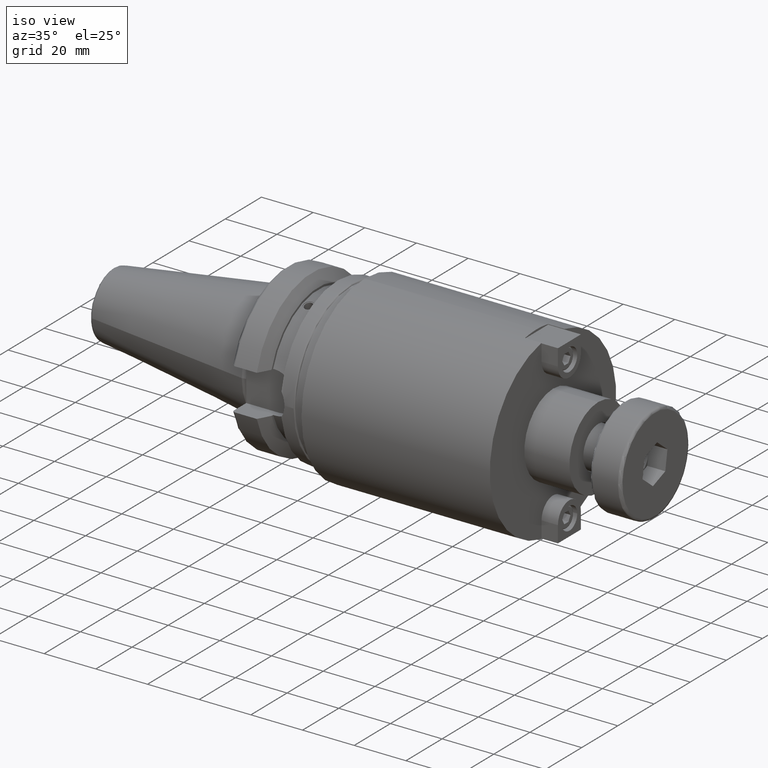
[diagram: clean part render]
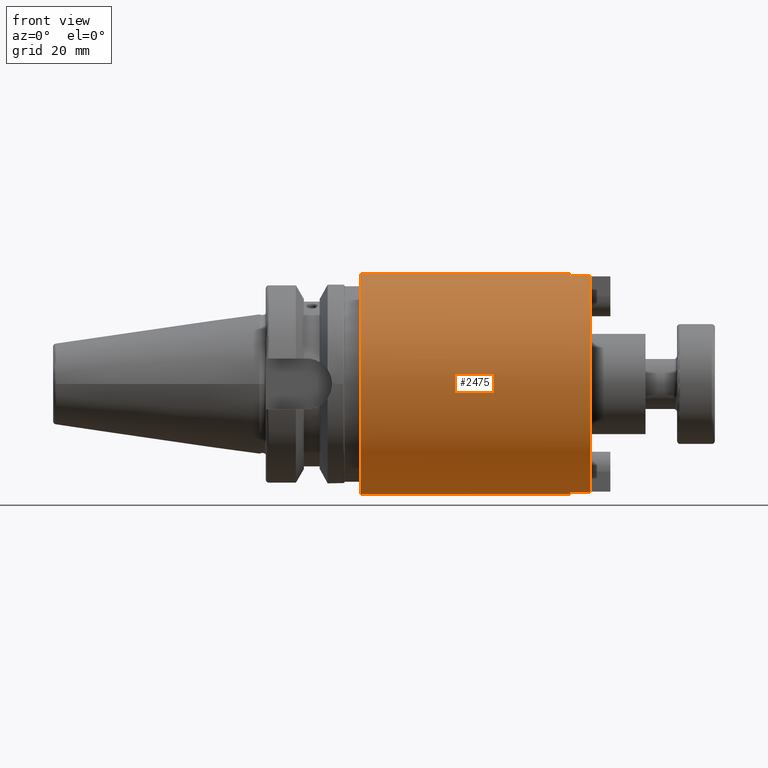
[diagram: tour spotlight — one face highlighted and labeled with its STEP entity id]
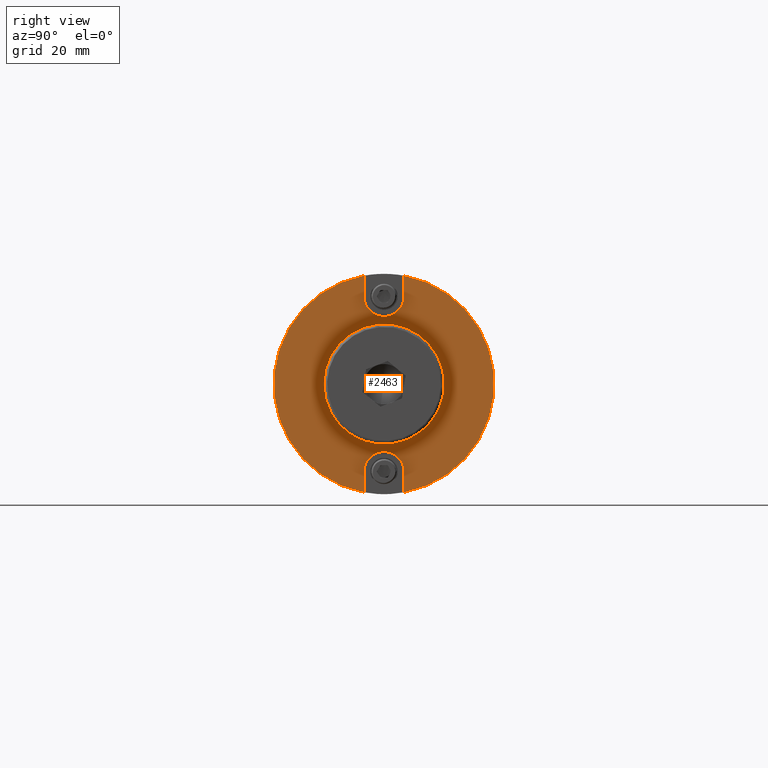
[diagram: tour spotlight — one face highlighted and labeled with its STEP entity id]
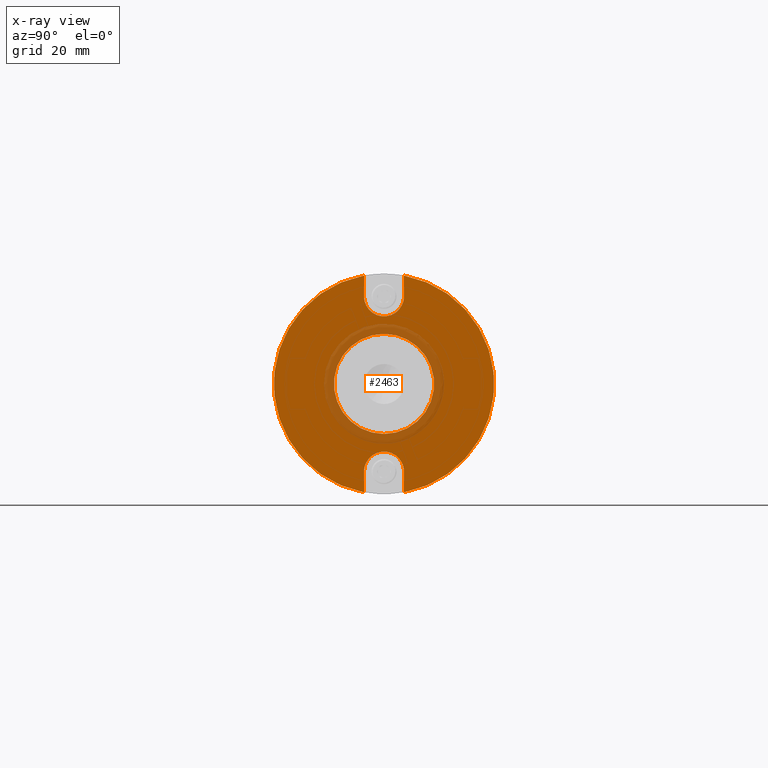
[diagram: x-ray of the same camera — body ghosted, this tour face saturated]
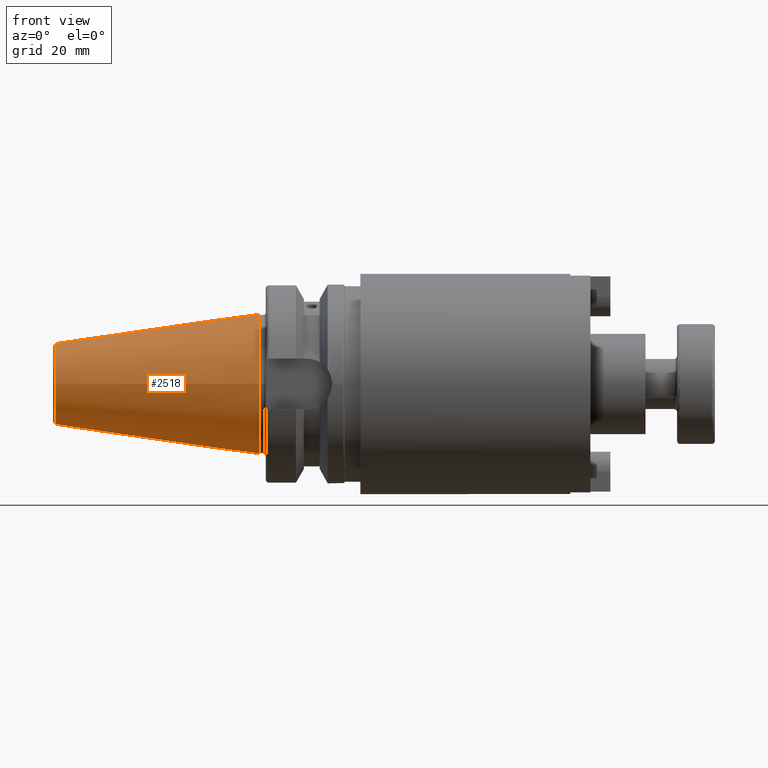
[diagram: tour spotlight — one face highlighted and labeled with its STEP entity id]
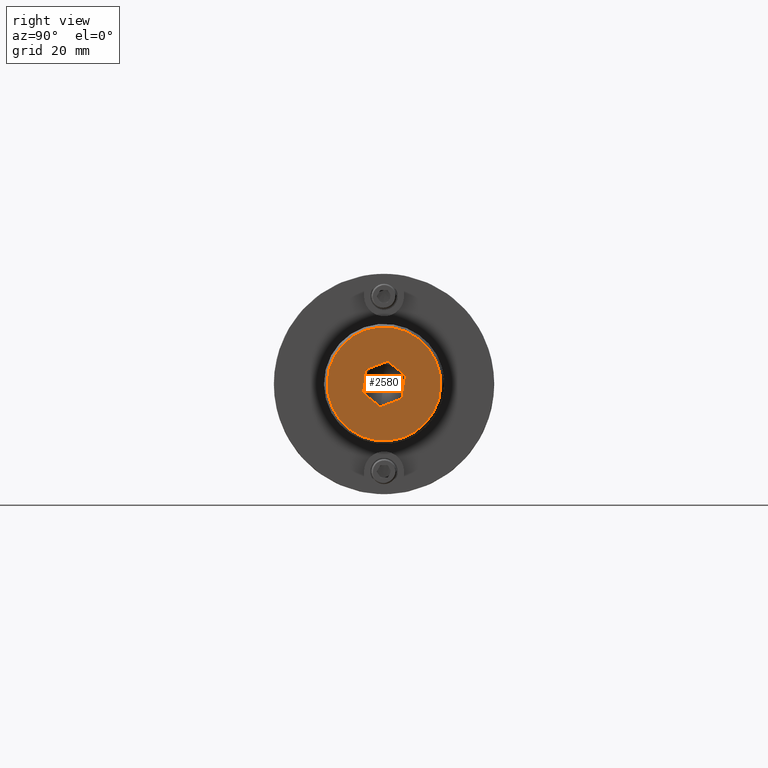
[diagram: tour spotlight — one face highlighted and labeled with its STEP entity id]
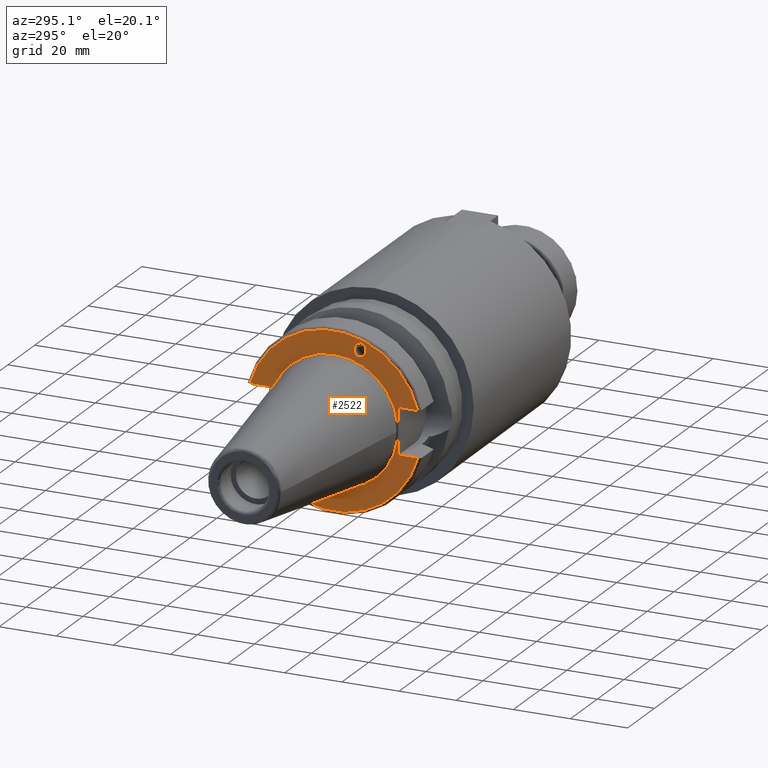
[diagram: tour spotlight — one face highlighted and labeled with its STEP entity id]
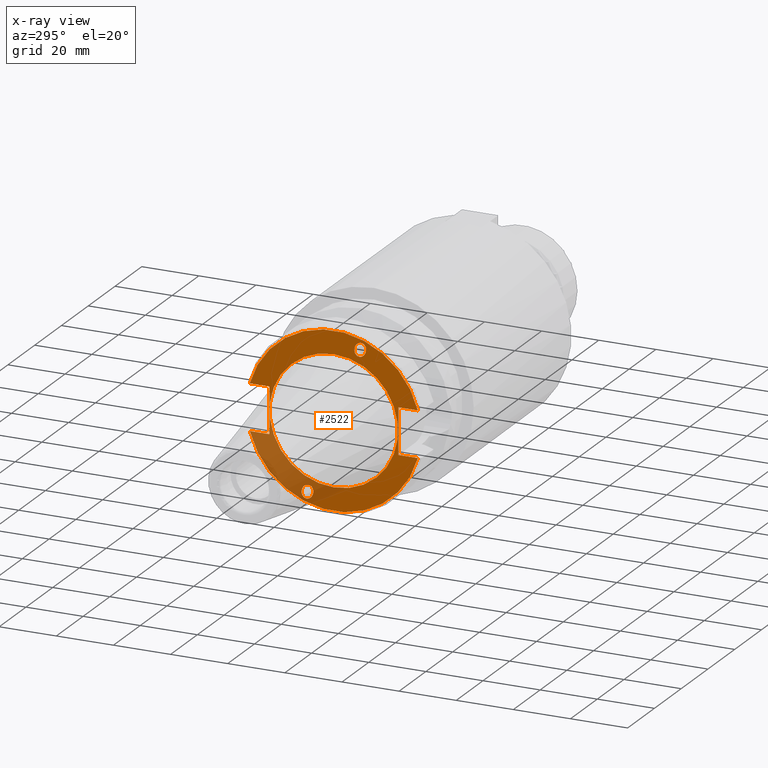
[diagram: x-ray of the same camera — body ghosted, this tour face saturated]
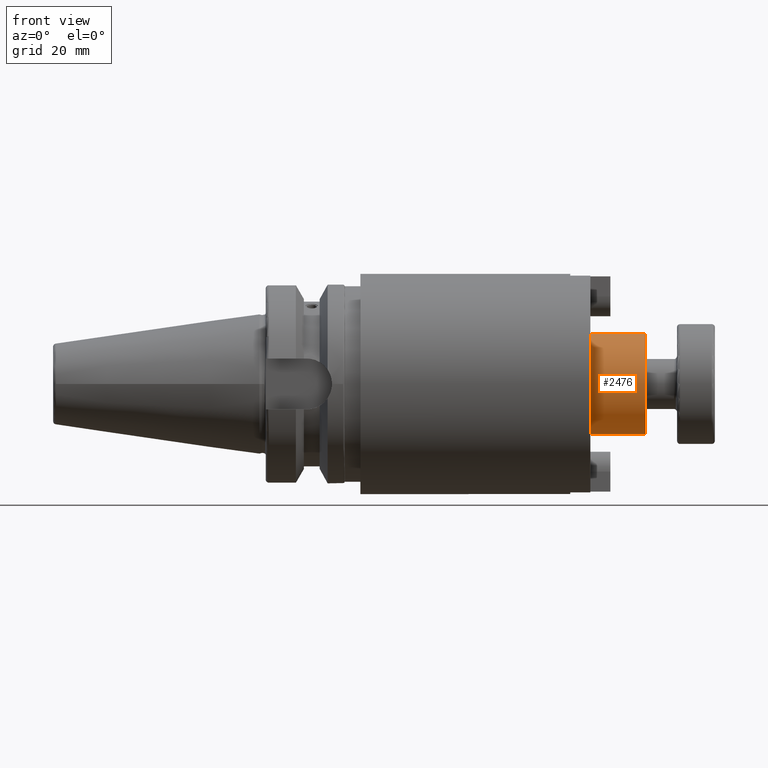
[diagram: tour spotlight — one face highlighted and labeled with its STEP entity id]
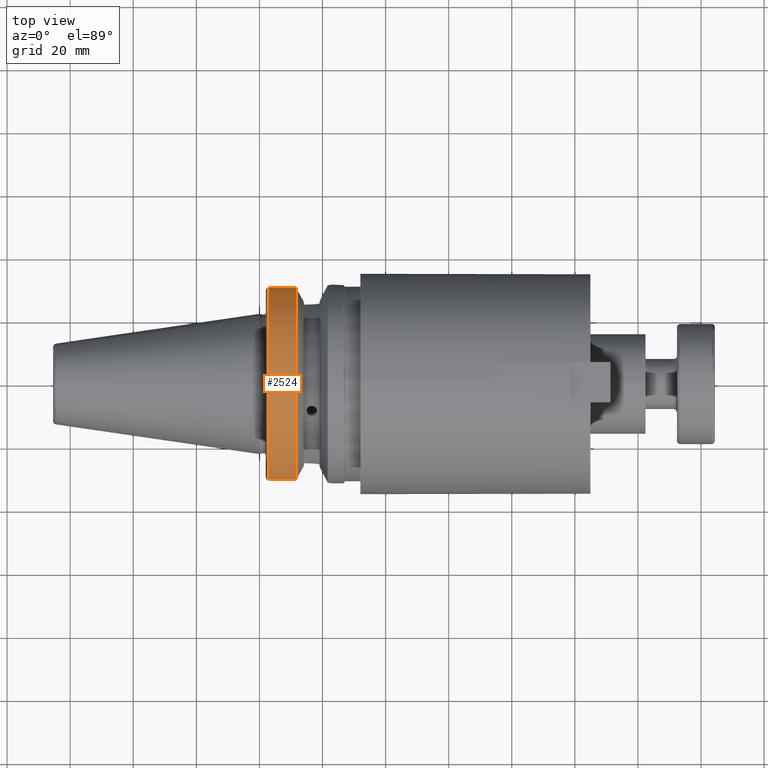
[diagram: tour spotlight — one face highlighted and labeled with its STEP entity id]
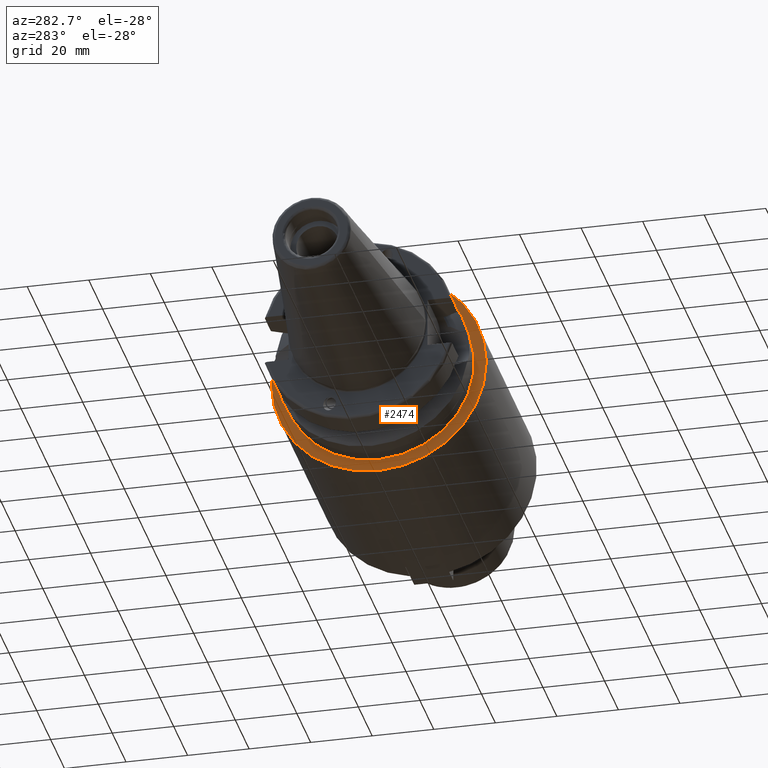
[diagram: tour spotlight — one face highlighted and labeled with its STEP entity id]
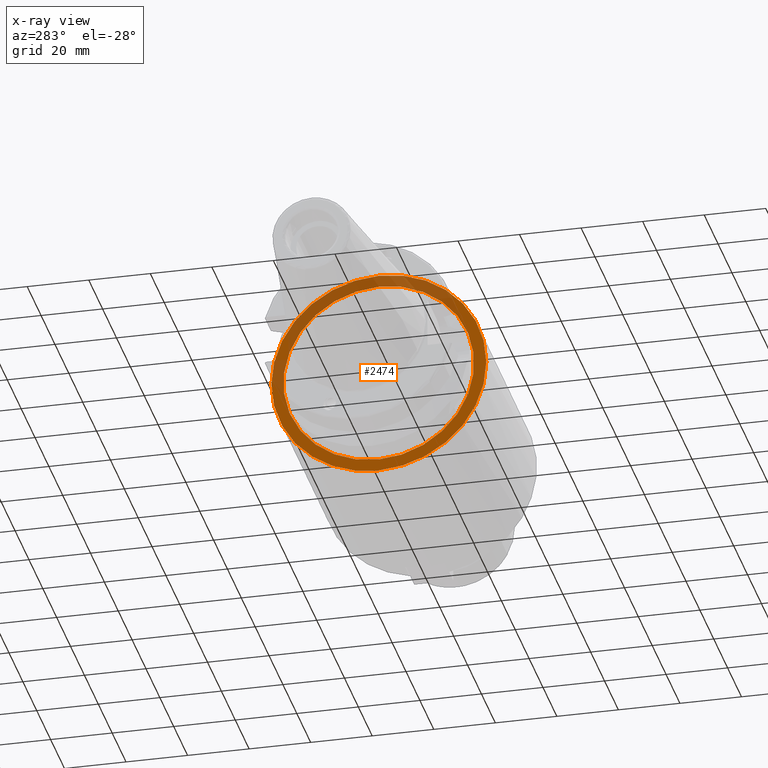
[diagram: x-ray of the same camera — body ghosted, this tour face saturated]
A machine part: a face-by-face anatomy tour. The part has 148 B-rep faces; the first image is the clean iso view, then the 8 largest visible faces are spotlighted one at a time (largest first), each with its STEP entity span.

Face 1 — front view, entity #2475. In plain terms, the highlighted cylindrical surface (bore or boss wall) has radius 34.925 mm, axis along (1, 0, 0).
Definition (entity closure, byte-faithful):
#574=CYLINDRICAL_SURFACE('',#2775,34.925);
#611=CIRCLE('',#2745,34.925);
#612=CIRCLE('',#2746,34.925);
#613=CIRCLE('',#2748,34.925);
#615=CIRCLE('',#2750,34.925);
#620=CIRCLE('',#2761,34.925);
#628=CIRCLE('',#2774,34.925);
#772=FACE_OUTER_BOUND('',#902,.T.);
#902=EDGE_LOOP('',(#1880,#1881,#1882,#1883,#1884,#1885,#1886,#1887,#1888,
#1889,#1890,#1891));
#1028=LINE('',#3854,#1163);
#1034=LINE('',#3872,#1169);
#1042=LINE('',#3908,#1177);
#1045=LINE('',#3914,#1180);
#1052=LINE('',#4024,#1187);
#1163=VECTOR('',#3066,10.);
#1169=VECTOR('',#3082,10.);
#1177=VECTOR('',#3122,10.);
#1180=VECTOR('',#3127,10.);
#1187=VECTOR('',#3170,34.925);
#1298=VERTEX_POINT('',#3852);
#1299=VERTEX_POINT('',#3853);
#1305=VERTEX_POINT('',#3870);
#1306=VERTEX_POINT('',#3871);
#1309=VERTEX_POINT('',#3882);
#1310=VERTEX_POINT('',#3886);
#1313=VERTEX_POINT('',#3892);
#1318=VERTEX_POINT('',#3907);
#1320=VERTEX_POINT('',#3913);
#1333=VERTEX_POINT('',#4021);
#1497=EDGE_CURVE('',#1298,#1299,#1028,.T.);
#1505=EDGE_CURVE('',#1305,#1306,#1034,.T.);
#1511=EDGE_CURVE('',#1306,#1309,#611,.T.);
#1512=EDGE_CURVE('',#1309,#1298,#612,.T.);
#1513=EDGE_CURVE('',#1305,#1310,#613,.T.);
#1517=EDGE_CURVE('',#1313,#1299,#615,.T.);
#1523=EDGE_CURVE('',#1318,#1310,#1042,.T.);
#1526=EDGE_CURVE('',#1313,#1320,#1045,.T.);
#1530=EDGE_CURVE('',#1320,#1318,#620,.T.);
#1546=EDGE_CURVE('',#1333,#1333,#628,.T.);
#1547=EDGE_CURVE('',#1309,#1333,#1052,.T.);
#1880=ORIENTED_EDGE('',*,*,#1497,.T.);
#1881=ORIENTED_EDGE('',*,*,#1517,.F.);
#1882=ORIENTED_EDGE('',*,*,#1526,.T.);
#1883=ORIENTED_EDGE('',*,*,#1530,.T.);
#1884=ORIENTED_EDGE('',*,*,#1523,.T.);
#1885=ORIENTED_EDGE('',*,*,#1513,.F.);
#1886=ORIENTED_EDGE('',*,*,#1505,.T.);
#1887=ORIENTED_EDGE('',*,*,#1511,.T.);
#1888=ORIENTED_EDGE('',*,*,#1547,.T.);
#1889=ORIENTED_EDGE('',*,*,#1546,.T.);
#1890=ORIENTED_EDGE('',*,*,#1547,.F.);
#1891=ORIENTED_EDGE('',*,*,#1512,.T.);
#2475=ADVANCED_FACE('',(#772),#574,.T.);
#2745=AXIS2_PLACEMENT_3D('',#3883,#3094,#3095);
#2746=AXIS2_PLACEMENT_3D('',#3884,#3096,#3097);
#2748=AXIS2_PLACEMENT_3D('',#3887,#3100,#3101);
#2750=AXIS2_PLACEMENT_3D('',#3894,#3106,#3107);
#2761=AXIS2_PLACEMENT_3D('',#3921,#3136,#3137);
#2774=AXIS2_PLACEMENT_3D('',#4022,#3166,#3167);
#2775=AXIS2_PLACEMENT_3D('',#4023,#3168,#3169);
#3066=DIRECTION('',(1.,0.,0.));
#3082=DIRECTION('',(-1.,0.,0.));
#3094=DIRECTION('center_axis',(-1.,0.,0.));
#3095=DIRECTION('ref_axis',(0.,0.,-1.));
#3096=DIRECTION('center_axis',(-1.,0.,0.));
#3097=DIRECTION('ref_axis',(0.,0.,-1.));
#3100=DIRECTION('center_axis',(1.,0.,0.));
#3101=DIRECTION('ref_axis',(0.,0.,-1.));
#3106=DIRECTION('center_axis',(1.,0.,0.));
#3107=DIRECTION('ref_axis',(0.,0.,-1.));
#3122=DIRECTION('',(1.,0.,0.));
#3127=DIRECTION('',(-1.,0.,0.));
#3136=DIRECTION('center_axis',(-1.,0.,0.));
#3137=DIRECTION('ref_axis',(0.,0.,-1.));
#3166=DIRECTION('center_axis',(1.,0.,0.));
#3167=DIRECTION('ref_axis',(0.,0.,-1.));
#3168=DIRECTION('center_axis',(1.,0.,0.));
#3169=DIRECTION('ref_axis',(0.,0.,-1.));
#3170=DIRECTION('',(-1.,0.,0.));
#3852=CARTESIAN_POINT('',(98.55,6.35,34.3428758987945));
#3853=CARTESIAN_POINT('',(104.9,6.35,34.3428758987945));
#3854=CARTESIAN_POINT('',(68.45,6.35,34.3428758987945));
#3870=CARTESIAN_POINT('',(104.9,-6.34999999999999,34.3428758987945));
#3871=CARTESIAN_POINT('',(98.55,-6.34999999999999,34.3428758987945));
#3872=CARTESIAN_POINT('',(68.45,-6.34999999999999,34.3428758987945));
#3882=CARTESIAN_POINT('',(98.55,-4.27707894602213E-15,34.925));
#3883=CARTESIAN_POINT('Origin',(98.55,0.,0.));
#3884=CARTESIAN_POINT('Origin',(98.55,0.,0.));
#3886=CARTESIAN_POINT('',(104.9,-6.35,-34.3428758987945));
#3887=CARTESIAN_POINT('Origin',(104.9,0.,0.));
#3892=CARTESIAN_POINT('',(104.9,6.35,-34.3428758987945));
#3894=CARTESIAN_POINT('Origin',(104.9,0.,0.));
#3907=CARTESIAN_POINT('',(98.55,-6.35,-34.3428758987945));
#3908=CARTESIAN_POINT('',(68.45,-6.35,-34.3428758987945));
#3913=CARTESIAN_POINT('',(98.55,6.35,-34.3428758987945));
#3914=CARTESIAN_POINT('',(68.45,6.35,-34.3428758987945));
#3921=CARTESIAN_POINT('Origin',(98.55,0.,0.));
#4021=CARTESIAN_POINT('',(32.,-4.27707894602213E-15,34.925));
#4022=CARTESIAN_POINT('Origin',(32.,0.,0.));
#4023=CARTESIAN_POINT('Origin',(68.45,0.,0.));
#4024=CARTESIAN_POINT('',(68.45,-4.27707894602213E-15,34.925));

Face 2 — right view, entity #2463. An x-ray twin of the same camera follows (body ghosted, this face saturated) — the face is partly hidden behind the body. In plain terms, the highlighted planar face has unit normal (1, 0, 0).
Definition (entity closure, byte-faithful):
#542=FACE_BOUND('',#886,.T.);
#609=CIRCLE('',#2742,6.35);
#613=CIRCLE('',#2748,34.925);
#614=CIRCLE('',#2749,6.35);
#615=CIRCLE('',#2750,34.925);
#616=CIRCLE('',#2751,15.875);
#760=FACE_OUTER_BOUND('',#885,.T.);
#885=EDGE_LOOP('',(#1823,#1824,#1825,#1826,#1827,#1828,#1829,#1830));
#886=EDGE_LOOP('',(#1831));
#1031=LINE('',#3859,#1166);
#1035=LINE('',#3874,#1170);
#1038=LINE('',#3889,#1173);
#1039=LINE('',#3893,#1174);
#1166=VECTOR('',#3069,10.);
#1170=VECTOR('',#3083,10.);
#1173=VECTOR('',#3102,10.);
#1174=VECTOR('',#3105,10.);
#1299=VERTEX_POINT('',#3853);
#1301=VERTEX_POINT('',#3857);
#1305=VERTEX_POINT('',#3870);
#1307=VERTEX_POINT('',#3873);
#1310=VERTEX_POINT('',#3886);
#1311=VERTEX_POINT('',#3888);
#1312=VERTEX_POINT('',#3890);
#1313=VERTEX_POINT('',#3892);
#1314=VERTEX_POINT('',#3895);
#1500=EDGE_CURVE('',#1299,#1301,#1031,.T.);
#1506=EDGE_CURVE('',#1307,#1305,#1035,.T.);
#1509=EDGE_CURVE('',#1301,#1307,#609,.T.);
#1513=EDGE_CURVE('',#1305,#1310,#613,.T.);
#1514=EDGE_CURVE('',#1310,#1311,#1038,.T.);
#1515=EDGE_CURVE('',#1311,#1312,#614,.T.);
#1516=EDGE_CURVE('',#1312,#1313,#1039,.T.);
#1517=EDGE_CURVE('',#1313,#1299,#615,.T.);
#1518=EDGE_CURVE('',#1314,#1314,#616,.T.);
#1823=ORIENTED_EDGE('',*,*,#1500,.T.);
#1824=ORIENTED_EDGE('',*,*,#1509,.T.);
#1825=ORIENTED_EDGE('',*,*,#1506,.T.);
#1826=ORIENTED_EDGE('',*,*,#1513,.T.);
#1827=ORIENTED_EDGE('',*,*,#1514,.T.);
#1828=ORIENTED_EDGE('',*,*,#1515,.T.);
#1829=ORIENTED_EDGE('',*,*,#1516,.T.);
#1830=ORIENTED_EDGE('',*,*,#1517,.T.);
#1831=ORIENTED_EDGE('',*,*,#1518,.F.);
#2403=PLANE('',#2747);
#2463=ADVANCED_FACE('',(#760,#542),#2403,.T.);
#2742=AXIS2_PLACEMENT_3D('',#3879,#3088,#3089);
#2747=AXIS2_PLACEMENT_3D('',#3885,#3098,#3099);
#2748=AXIS2_PLACEMENT_3D('',#3887,#3100,#3101);
#2749=AXIS2_PLACEMENT_3D('',#3891,#3103,#3104);
#2750=AXIS2_PLACEMENT_3D('',#3894,#3106,#3107);
#2751=AXIS2_PLACEMENT_3D('',#3896,#3108,#3109);
#3069=DIRECTION('',(0.,3.34417223223189E-16,-1.));
#3083=DIRECTION('',(0.,5.7934658305266E-16,1.));
#3088=DIRECTION('center_axis',(-1.,0.,0.));
#3089=DIRECTION('ref_axis',(0.,-1.,1.22464679914735E-16));
#3098=DIRECTION('center_axis',(1.,0.,0.));
#3099=DIRECTION('ref_axis',(0.,0.,-1.));
#3100=DIRECTION('center_axis',(1.,0.,0.));
#3101=DIRECTION('ref_axis',(0.,0.,-1.));
#3102=DIRECTION('',(0.,-4.56881903137925E-16,1.));
#3103=DIRECTION('center_axis',(-1.,0.,0.));
#3104=DIRECTION('ref_axis',(0.,1.,0.));
#3105=DIRECTION('',(0.,-4.56881903137925E-16,-1.));
#3106=DIRECTION('center_axis',(1.,0.,0.));
#3107=DIRECTION('ref_axis',(0.,0.,-1.));
#3108=DIRECTION('center_axis',(1.,0.,0.));
#3109=DIRECTION('ref_axis',(0.,0.,-1.));
#3853=CARTESIAN_POINT('',(104.9,6.35,34.3428758987945));
#3857=CARTESIAN_POINT('',(104.9,6.35,27.775));
#3859=CARTESIAN_POINT('',(104.9,6.35000000000001,12.025));
#3870=CARTESIAN_POINT('',(104.9,-6.34999999999999,34.3428758987945));
#3873=CARTESIAN_POINT('',(104.9,-6.35,27.775));
#3874=CARTESIAN_POINT('',(104.9,-6.35000000000001,5.95));
#3879=CARTESIAN_POINT('Origin',(104.9,3.40145648463177E-15,27.775));
#3885=CARTESIAN_POINT('Origin',(104.9,0.,-15.875));
#3886=CARTESIAN_POINT('',(104.9,-6.35,-34.3428758987945));
#3887=CARTESIAN_POINT('Origin',(104.9,0.,0.));
#3888=CARTESIAN_POINT('',(104.9,-6.35,-27.775));
#3889=CARTESIAN_POINT('',(104.9,-6.35,-27.9));
#3890=CARTESIAN_POINT('',(104.9,6.35,-27.775));
#3891=CARTESIAN_POINT('Origin',(104.9,0.,-27.775));
#3892=CARTESIAN_POINT('',(104.9,6.35,-34.3428758987945));
#3893=CARTESIAN_POINT('',(104.9,6.35,-21.825));
#3894=CARTESIAN_POINT('Origin',(104.9,0.,0.));
#3895=CARTESIAN_POINT('',(104.9,-1.94412679364642E-15,15.875));
#3896=CARTESIAN_POINT('Origin',(104.9,0.,0.));

Face 3 — front view, entity #2518. In plain terms, the highlighted conical surface has half-angle 8.297 deg.
Definition (entity closure, byte-faithful):
#661=CIRCLE('',#2868,12.8122885780937);
#662=CIRCLE('',#2869,12.8122885780937);
#664=CIRCLE('',#2872,22.225);
#746=CONICAL_SURFACE('',#2871,17.5186442890469,0.144812498238939);
#815=FACE_OUTER_BOUND('',#953,.T.);
#953=EDGE_LOOP('',(#2112,#2113,#2114,#2115,#2116));
#1100=LINE('',#4450,#1235);
#1235=VECTOR('',#3412,17.5186442890469);
#1418=VERTEX_POINT('',#4442);
#1419=VERTEX_POINT('',#4443);
#1420=VERTEX_POINT('',#4448);
#1668=EDGE_CURVE('',#1418,#1419,#661,.T.);
#1669=EDGE_CURVE('',#1419,#1418,#662,.T.);
#1671=EDGE_CURVE('',#1420,#1420,#664,.T.);
#1672=EDGE_CURVE('',#1420,#1418,#1100,.T.);
#2112=ORIENTED_EDGE('',*,*,#1671,.F.);
#2113=ORIENTED_EDGE('',*,*,#1672,.T.);
#2114=ORIENTED_EDGE('',*,*,#1668,.T.);
#2115=ORIENTED_EDGE('',*,*,#1669,.T.);
#2116=ORIENTED_EDGE('',*,*,#1672,.F.);
#2518=ADVANCED_FACE('',(#815),#746,.T.);
#2868=AXIS2_PLACEMENT_3D('',#4444,#3402,#3403);
#2869=AXIS2_PLACEMENT_3D('',#4445,#3404,#3405);
#2871=AXIS2_PLACEMENT_3D('',#4447,#3408,#3409);
#2872=AXIS2_PLACEMENT_3D('',#4449,#3410,#3411);
#3402=DIRECTION('center_axis',(1.,0.,0.));
#3403=DIRECTION('ref_axis',(0.,0.,-1.));
#3404=DIRECTION('center_axis',(1.,0.,0.));
#3405=DIRECTION('ref_axis',(0.,0.,-1.));
#3408=DIRECTION('center_axis',(1.,0.,0.));
#3409=DIRECTION('ref_axis',(0.,1.,0.));
#3410=DIRECTION('center_axis',(1.,0.,0.));
#3411=DIRECTION('ref_axis',(0.,0.,-1.));
#3412=DIRECTION('',(-0.989532981063282,0.144306893071729,1.76724974695192E-17));
#4442=CARTESIAN_POINT('',(-64.5443068930717,-12.8122885780937,-1.56905281969147E-15));
#4443=CARTESIAN_POINT('',(-64.5443068930717,-1.56905281969147E-15,12.8122885780937));
#4444=CARTESIAN_POINT('Origin',(-64.5443068930717,0.,0.));
#4445=CARTESIAN_POINT('Origin',(-64.5443068930717,0.,0.));
#4447=CARTESIAN_POINT('Origin',(-32.2721534465359,0.,0.));
#4448=CARTESIAN_POINT('',(4.44089209850063E-15,-22.225,-2.72177751110499E-15));
#4449=CARTESIAN_POINT('Origin',(0.,0.,0.));
#4450=CARTESIAN_POINT('',(-32.2721534465359,-17.5186442890469,-2.14541516539823E-15));

Face 4 — right view, entity #2580. In plain terms, the highlighted planar face has unit normal (1, -0, -0).
Definition (entity closure, byte-faithful):
#566=FACE_BOUND('',#1027,.T.);
#736=CIRCLE('',#3026,18.05);
#877=FACE_OUTER_BOUND('',#1026,.T.);
#1026=EDGE_LOOP('',(#2393));
#1027=EDGE_LOOP('',(#2394,#2395,#2396,#2397,#2398,#2399));
#1150=LINE('',#5012,#1285);
#1153=LINE('',#5017,#1288);
#1155=LINE('',#5021,#1290);
#1157=LINE('',#5025,#1292);
#1159=LINE('',#5029,#1294);
#1161=LINE('',#5032,#1296);
#1285=VECTOR('',#3730,10.);
#1288=VECTOR('',#3735,10.);
#1290=VECTOR('',#3739,10.);
#1292=VECTOR('',#3743,10.);
#1294=VECTOR('',#3747,10.);
#1296=VECTOR('',#3751,10.);
#1484=VERTEX_POINT('',#5010);
#1485=VERTEX_POINT('',#5011);
#1486=VERTEX_POINT('',#5016);
#1487=VERTEX_POINT('',#5020);
#1488=VERTEX_POINT('',#5024);
#1489=VERTEX_POINT('',#5028);
#1496=VERTEX_POINT('',#5053);
#1775=EDGE_CURVE('',#1484,#1485,#1150,.T.);
#1778=EDGE_CURVE('',#1486,#1484,#1153,.T.);
#1780=EDGE_CURVE('',#1487,#1486,#1155,.T.);
#1782=EDGE_CURVE('',#1488,#1487,#1157,.T.);
#1784=EDGE_CURVE('',#1489,#1488,#1159,.T.);
#1786=EDGE_CURVE('',#1485,#1489,#1161,.T.);
#1797=EDGE_CURVE('',#1496,#1496,#736,.T.);
#2393=ORIENTED_EDGE('',*,*,#1797,.F.);
#2394=ORIENTED_EDGE('',*,*,#1775,.T.);
#2395=ORIENTED_EDGE('',*,*,#1786,.T.);
#2396=ORIENTED_EDGE('',*,*,#1784,.T.);
#2397=ORIENTED_EDGE('',*,*,#1782,.T.);
#2398=ORIENTED_EDGE('',*,*,#1780,.T.);
#2399=ORIENTED_EDGE('',*,*,#1778,.T.);
#2456=PLANE('',#3027);
#2580=ADVANCED_FACE('',(#877,#566),#2456,.T.);
#3026=AXIS2_PLACEMENT_3D('',#5055,#3781,#3782);
#3027=AXIS2_PLACEMENT_3D('',#5056,#3783,#3784);
#3730=DIRECTION('',(0.,-0.866025403784439,-0.5));
#3735=DIRECTION('',(0.,-0.866025403784439,0.5));
#3739=DIRECTION('',(0.,-1.51414384754611E-16,1.));
#3743=DIRECTION('',(0.,0.866025403784439,0.5));
#3747=DIRECTION('',(0.,0.866025403784438,-0.5));
#3751=DIRECTION('',(0.,-6.05657539018446E-16,-1.));
#3781=DIRECTION('center_axis',(1.,0.,0.));
#3782=DIRECTION('ref_axis',(0.,-1.,1.83697019872103E-16));
#3783=DIRECTION('center_axis',(-1.,0.,0.));
#3784=DIRECTION('ref_axis',(0.,0.,1.));
#5010=CARTESIAN_POINT('',(0.,-1.23259516440783E-31,7.33234841870824));
#5011=CARTESIAN_POINT('',(0.,-6.34999999999999,3.66617420935412));
#5012=CARTESIAN_POINT('',(0.,5.55625,10.5402508518931));
#5016=CARTESIAN_POINT('',(0.,6.34999999999999,3.66617420935412));
#5017=CARTESIAN_POINT('',(0.,11.90625,0.45827177616926));
#5020=CARTESIAN_POINT('',(0.,6.34999999999999,-3.66617420935412));
#5021=CARTESIAN_POINT('',(0.,6.34999999999999,-1.83308710467706));
#5024=CARTESIAN_POINT('',(0.,-3.33066907387547E-15,-7.33234841870824));
#5025=CARTESIAN_POINT('',(0.,8.73125,-2.29135888084633));
#5028=CARTESIAN_POINT('',(0.,-6.35,-3.66617420935412));
#5029=CARTESIAN_POINT('',(0.,2.38125,-8.70716374721604));
#5032=CARTESIAN_POINT('',(0.,-6.35,1.83308710467707));
#5053=CARTESIAN_POINT('',(0.,-2.21048747246097E-15,18.05));
#5055=CARTESIAN_POINT('Origin',(0.,0.,0.));
#5056=CARTESIAN_POINT('Origin',(0.,19.05,0.));

Face 5 — auxiliary view, entity #2522. An x-ray twin of the same camera follows (body ghosted, this face saturated) — the face is partly hidden behind the body. In plain terms, the highlighted planar face has unit normal (-1, 0, 0).
Definition (entity closure, byte-faithful):
#504=ELLIPSE('',#2805,2.44154917752291,2.);
#513=ELLIPSE('',#2828,2.44154917752291,2.);
#555=FACE_BOUND('',#958,.T.);
#556=FACE_BOUND('',#959,.T.);
#557=FACE_BOUND('',#960,.T.);
#653=CIRCLE('',#2852,30.5);
#669=CIRCLE('',#2880,22.5);
#670=CIRCLE('',#2882,30.5);
#819=FACE_OUTER_BOUND('',#957,.T.);
#957=EDGE_LOOP('',(#2131,#2132,#2133,#2134,#2135,#2136,#2137,#2138));
#958=EDGE_LOOP('',(#2139));
#959=EDGE_LOOP('',(#2140));
#960=EDGE_LOOP('',(#2141));
#1076=LINE('',#4275,#1211);
#1080=LINE('',#4283,#1215);
#1083=LINE('',#4303,#1218);
#1094=LINE('',#4403,#1229);
#1097=LINE('',#4424,#1232);
#1099=LINE('',#4427,#1234);
#1211=VECTOR('',#3306,10.);
#1215=VECTOR('',#3312,10.);
#1218=VECTOR('',#3317,10.);
#1229=VECTOR('',#3372,10.);
#1232=VECTOR('',#3377,10.);
#1234=VECTOR('',#3381,10.);
#1351=VERTEX_POINT('',#4115);
#1366=VERTEX_POINT('',#4196);
#1382=VERTEX_POINT('',#4263);
#1383=VERTEX_POINT('',#4274);
#1385=VERTEX_POINT('',#4280);
#1386=VERTEX_POINT('',#4282);
#1401=VERTEX_POINT('',#4363);
#1408=VERTEX_POINT('',#4400);
#1409=VERTEX_POINT('',#4402);
#1413=VERTEX_POINT('',#4423);
#1424=VERTEX_POINT('',#4462);
#1575=EDGE_CURVE('',#1351,#1351,#504,.T.);
#1598=EDGE_CURVE('',#1366,#1366,#513,.T.);
#1615=EDGE_CURVE('',#1383,#1382,#1076,.T.);
#1619=EDGE_CURVE('',#1386,#1385,#1080,.T.);
#1624=EDGE_CURVE('',#1385,#1383,#1083,.T.);
#1644=EDGE_CURVE('',#1386,#1401,#653,.T.);
#1654=EDGE_CURVE('',#1409,#1408,#1094,.T.);
#1659=EDGE_CURVE('',#1413,#1401,#1097,.T.);
#1661=EDGE_CURVE('',#1408,#1413,#1099,.T.);
#1679=EDGE_CURVE('',#1424,#1424,#669,.T.);
#1680=EDGE_CURVE('',#1409,#1382,#670,.T.);
#2131=ORIENTED_EDGE('',*,*,#1615,.T.);
#2132=ORIENTED_EDGE('',*,*,#1680,.F.);
#2133=ORIENTED_EDGE('',*,*,#1654,.T.);
#2134=ORIENTED_EDGE('',*,*,#1661,.T.);
#2135=ORIENTED_EDGE('',*,*,#1659,.T.);
#2136=ORIENTED_EDGE('',*,*,#1644,.F.);
#2137=ORIENTED_EDGE('',*,*,#1619,.T.);
#2138=ORIENTED_EDGE('',*,*,#1624,.T.);
#2139=ORIENTED_EDGE('',*,*,#1575,.T.);
#2140=ORIENTED_EDGE('',*,*,#1598,.T.);
#2141=ORIENTED_EDGE('',*,*,#1679,.T.);
#2423=PLANE('',#2881);
#2522=ADVANCED_FACE('',(#819,#555,#556,#557),#2423,.T.);
#2805=AXIS2_PLACEMENT_3D('',#4117,#3238,#3239);
#2828=AXIS2_PLACEMENT_3D('',#4198,#3291,#3292);
#2852=AXIS2_PLACEMENT_3D('',#4364,#3359,#3360);
#2880=AXIS2_PLACEMENT_3D('',#4464,#3429,#3430);
#2881=AXIS2_PLACEMENT_3D('',#4465,#3431,#3432);
#2882=AXIS2_PLACEMENT_3D('',#4466,#3433,#3434);
#3238=DIRECTION('center_axis',(1.,0.,0.));
#3239=DIRECTION('ref_axis',(5.68400912649004E-17,-0.342020143325671,0.939692620785908));
#3291=DIRECTION('center_axis',(1.,0.,0.));
#3292=DIRECTION('ref_axis',(5.68400912649004E-17,0.342020143325671,-0.939692620785908));
#3306=DIRECTION('',(0.,-1.,0.));
#3312=DIRECTION('',(0.,1.,0.));
#3317=DIRECTION('',(0.,0.,1.));
#3359=DIRECTION('center_axis',(1.,0.,0.));
#3360=DIRECTION('ref_axis',(0.,0.,-1.));
#3372=DIRECTION('',(0.,-1.,0.));
#3377=DIRECTION('',(0.,1.,0.));
#3381=DIRECTION('',(0.,0.,-1.));
#3429=DIRECTION('center_axis',(1.,0.,0.));
#3430=DIRECTION('ref_axis',(0.,0.,-1.));
#3431=DIRECTION('center_axis',(-1.,0.,0.));
#3432=DIRECTION('ref_axis',(0.,0.,1.));
#3433=DIRECTION('center_axis',(1.,0.,0.));
#3434=DIRECTION('ref_axis',(0.,0.,-1.));
#4115=CARTESIAN_POINT('',(1.99999999999999,-8.39948487015999,23.0773950158154));
#4117=CARTESIAN_POINT('Origin',(1.99999999999999,-9.23454386979305,25.3717007612195));
#4196=CARTESIAN_POINT('',(1.99999999999999,8.39948487015999,-23.0773950158154));
#4198=CARTESIAN_POINT('Origin',(1.99999999999999,9.23454386979305,-25.3717007612195));
#4263=CARTESIAN_POINT('',(1.99999999999999,-29.4184890842477,8.05));
#4274=CARTESIAN_POINT('',(1.99999999999999,-22.6,8.05));
#4275=CARTESIAN_POINT('',(1.99999999999999,3.95,8.05));
#4280=CARTESIAN_POINT('',(1.99999999999999,-22.6,-8.05));
#4282=CARTESIAN_POINT('',(1.99999999999999,-29.4184890842477,-8.05));
#4283=CARTESIAN_POINT('',(1.99999999999999,3.95,-8.05));
#4303=CARTESIAN_POINT('',(1.99999999999999,-22.6,0.));
#4363=CARTESIAN_POINT('',(1.99999999999999,29.4184890842477,-8.05));
#4364=CARTESIAN_POINT('Origin',(1.99999999999999,0.,0.));
#4400=CARTESIAN_POINT('',(1.99999999999999,22.6,8.05));
#4402=CARTESIAN_POINT('',(1.99999999999999,29.4184890842477,8.05));
#4403=CARTESIAN_POINT('',(1.99999999999999,26.55,8.05));
#4423=CARTESIAN_POINT('',(1.99999999999999,22.6,-8.05));
#4424=CARTESIAN_POINT('',(1.99999999999999,26.55,-8.05));
#4427=CARTESIAN_POINT('',(1.99999999999999,22.6,0.));
#4462=CARTESIAN_POINT('',(2.,-2.75545529808154E-15,22.5));
#4464=CARTESIAN_POINT('Origin',(2.,0.,0.));
#4465=CARTESIAN_POINT('Origin',(1.99999999999999,30.5,0.));
#4466=CARTESIAN_POINT('Origin',(1.99999999999999,0.,0.));

Face 6 — front view, entity #2476. In plain terms, the highlighted cylindrical surface (bore or boss wall) has radius 15.875 mm, axis along (1, 0, 0).
Definition (entity closure, byte-faithful):
#575=CYLINDRICAL_SURFACE('',#2776,15.875);
#616=CIRCLE('',#2751,15.875);
#629=CIRCLE('',#2777,15.875);
#773=FACE_OUTER_BOUND('',#903,.T.);
#903=EDGE_LOOP('',(#1892,#1893,#1894,#1895));
#1053=LINE('',#4028,#1188);
#1188=VECTOR('',#3175,15.875);
#1314=VERTEX_POINT('',#3895);
#1334=VERTEX_POINT('',#4026);
#1518=EDGE_CURVE('',#1314,#1314,#616,.T.);
#1548=EDGE_CURVE('',#1334,#1334,#629,.T.);
#1549=EDGE_CURVE('',#1334,#1314,#1053,.T.);
#1892=ORIENTED_EDGE('',*,*,#1548,.F.);
#1893=ORIENTED_EDGE('',*,*,#1549,.T.);
#1894=ORIENTED_EDGE('',*,*,#1518,.T.);
#1895=ORIENTED_EDGE('',*,*,#1549,.F.);
#2476=ADVANCED_FACE('',(#773),#575,.T.);
#2751=AXIS2_PLACEMENT_3D('',#3896,#3108,#3109);
#2776=AXIS2_PLACEMENT_3D('',#4025,#3171,#3172);
#2777=AXIS2_PLACEMENT_3D('',#4027,#3173,#3174);
#3108=DIRECTION('center_axis',(1.,0.,0.));
#3109=DIRECTION('ref_axis',(0.,0.,-1.));
#3171=DIRECTION('center_axis',(1.,0.,0.));
#3172=DIRECTION('ref_axis',(0.,0.,-1.));
#3173=DIRECTION('center_axis',(1.,0.,0.));
#3174=DIRECTION('ref_axis',(0.,0.,-1.));
#3175=DIRECTION('',(-1.,0.,0.));
#3895=CARTESIAN_POINT('',(104.9,-1.94412679364642E-15,15.875));
#3896=CARTESIAN_POINT('Origin',(104.9,0.,0.));
#4025=CARTESIAN_POINT('Origin',(113.64,0.,0.));
#4026=CARTESIAN_POINT('',(122.38,-1.94412679364642E-15,15.875));
#4027=CARTESIAN_POINT('Origin',(122.38,0.,0.));
#4028=CARTESIAN_POINT('',(113.64,-1.94412679364642E-15,15.875));

Face 7 — top view, entity #2524. In plain terms, the highlighted cylindrical surface (partial cylindrical patch) has radius 31.5 mm, axis along (1, 0, 0).
Definition (entity closure, byte-faithful):
#595=CYLINDRICAL_SURFACE('',#2885,31.5);
#671=CIRCLE('',#2884,31.5);
#672=CIRCLE('',#2886,31.5000000000001);
#821=FACE_OUTER_BOUND('',#962,.T.);
#962=EDGE_LOOP('',(#2146,#2147,#2148,#2149));
#1075=LINE('',#4262,#1210);
#1095=LINE('',#4416,#1230);
#1210=VECTOR('',#3305,10.);
#1230=VECTOR('',#3373,10.);
#1380=VERTEX_POINT('',#4257);
#1381=VERTEX_POINT('',#4261);
#1410=VERTEX_POINT('',#4404);
#1411=VERTEX_POINT('',#4415);
#1613=EDGE_CURVE('',#1381,#1380,#1075,.T.);
#1656=EDGE_CURVE('',#1411,#1410,#1095,.T.);
#1681=EDGE_CURVE('',#1410,#1381,#671,.T.);
#1682=EDGE_CURVE('',#1411,#1380,#672,.T.);
#2146=ORIENTED_EDGE('',*,*,#1613,.T.);
#2147=ORIENTED_EDGE('',*,*,#1682,.F.);
#2148=ORIENTED_EDGE('',*,*,#1656,.T.);
#2149=ORIENTED_EDGE('',*,*,#1681,.T.);
#2524=ADVANCED_FACE('',(#821),#595,.T.);
#2884=AXIS2_PLACEMENT_3D('',#4468,#3437,#3438);
#2885=AXIS2_PLACEMENT_3D('',#4469,#3439,#3440);
#2886=AXIS2_PLACEMENT_3D('',#4470,#3441,#3442);
#3305=DIRECTION('',(1.,0.,0.));
#3373=DIRECTION('',(-1.,0.,0.));
#3437=DIRECTION('center_axis',(1.,0.,0.));
#3438=DIRECTION('ref_axis',(0.,0.,-1.));
#3439=DIRECTION('center_axis',(1.,0.,0.));
#3440=DIRECTION('ref_axis',(0.,1.,0.));
#3441=DIRECTION('center_axis',(1.,0.,0.));
#3442=DIRECTION('ref_axis',(0.,0.,-1.));
#4257=CARTESIAN_POINT('',(11.5690363073382,-30.4540227227866,8.05));
#4261=CARTESIAN_POINT('',(3.,-30.4540227227866,8.05));
#4262=CARTESIAN_POINT('',(7.28451815366907,-30.4540227227866,8.05));
#4404=CARTESIAN_POINT('',(3.,30.4540227227866,8.05));
#4415=CARTESIAN_POINT('',(11.5690363073382,30.4540227227866,8.05));
#4416=CARTESIAN_POINT('',(7.28451815366907,30.4540227227866,8.05));
#4468=CARTESIAN_POINT('Origin',(3.,0.,0.));
#4469=CARTESIAN_POINT('Origin',(7.28451815366907,0.,0.));
#4470=CARTESIAN_POINT('Origin',(11.5690363073382,0.,0.));

Face 8 — auxiliary view, entity #2474. An x-ray twin of the same camera follows (body ghosted, this face saturated) — the face is partly hidden behind the body. In plain terms, the highlighted planar face has unit normal (-1, 0, 0).
Definition (entity closure, byte-faithful):
#546=FACE_BOUND('',#901,.T.);
#626=CIRCLE('',#2771,31.);
#628=CIRCLE('',#2774,34.925);
#771=FACE_OUTER_BOUND('',#900,.T.);
#900=EDGE_LOOP('',(#1878));
#901=EDGE_LOOP('',(#1879));
#1331=VERTEX_POINT('',#4015);
#1333=VERTEX_POINT('',#4021);
#1543=EDGE_CURVE('',#1331,#1331,#626,.T.);
#1546=EDGE_CURVE('',#1333,#1333,#628,.T.);
#1878=ORIENTED_EDGE('',*,*,#1546,.F.);
#1879=ORIENTED_EDGE('',*,*,#1543,.T.);
#2407=PLANE('',#2773);
#2474=ADVANCED_FACE('',(#771,#546),#2407,.T.);
#2771=AXIS2_PLACEMENT_3D('',#4016,#3159,#3160);
#2773=AXIS2_PLACEMENT_3D('',#4020,#3164,#3165);
#2774=AXIS2_PLACEMENT_3D('',#4022,#3166,#3167);
#3159=DIRECTION('center_axis',(1.,0.,0.));
#3160=DIRECTION('ref_axis',(0.,0.,-1.));
#3164=DIRECTION('center_axis',(-1.,0.,0.));
#3165=DIRECTION('ref_axis',(0.,0.,1.));
#3166=DIRECTION('center_axis',(1.,0.,0.));
#3167=DIRECTION('ref_axis',(0.,0.,-1.));
#4015=CARTESIAN_POINT('',(32.,-3.7964050773568E-15,31.));
#4016=CARTESIAN_POINT('Origin',(32.,0.,0.));
#4020=CARTESIAN_POINT('Origin',(32.,0.,-34.925));
#4021=CARTESIAN_POINT('',(32.,-4.27707894602213E-15,34.925));
#4022=CARTESIAN_POINT('Origin',(32.,0.,0.));